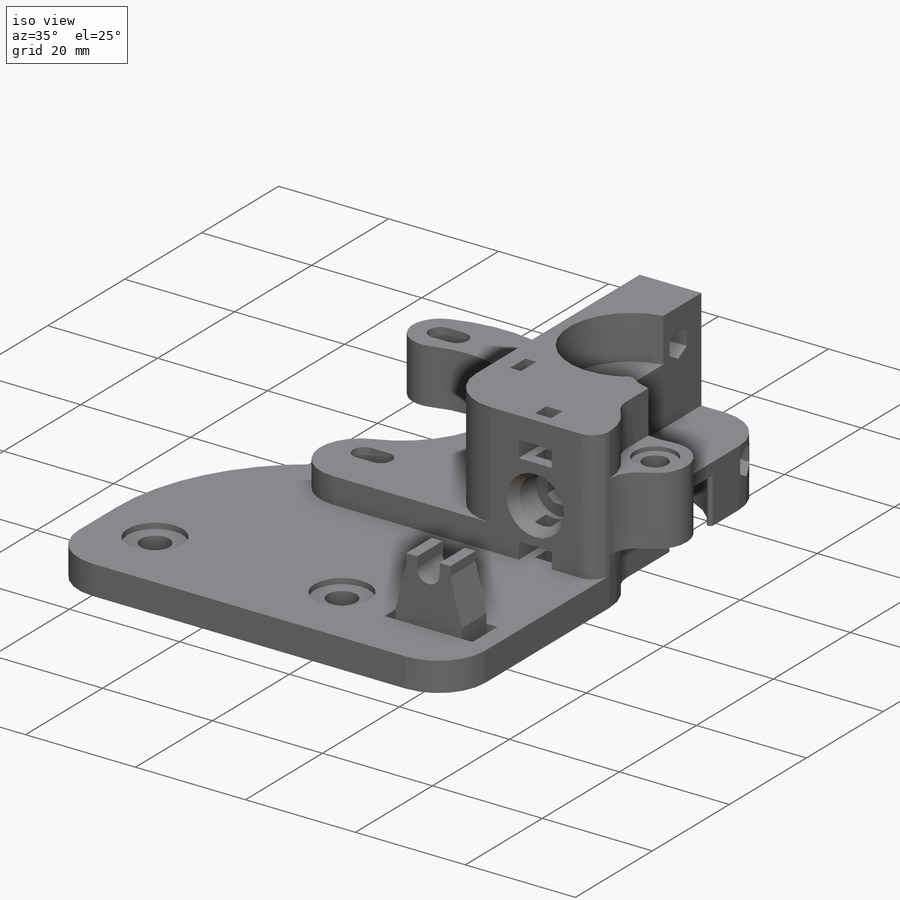
[diagram: iso view]
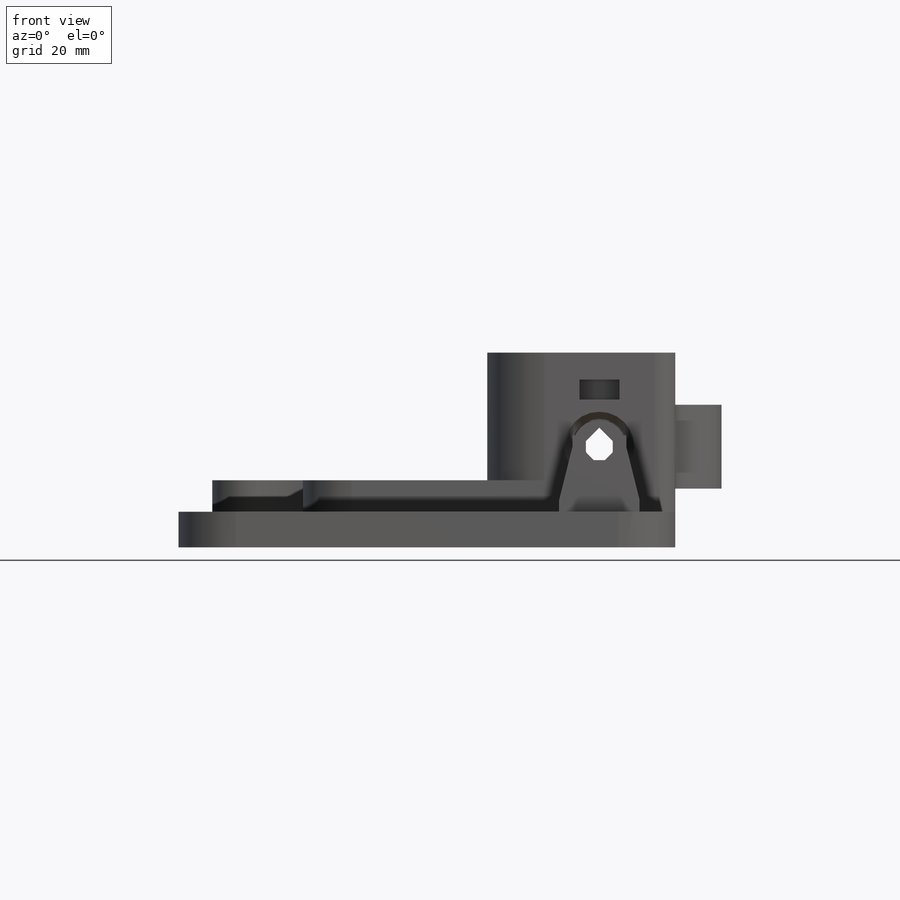
[diagram: front view]
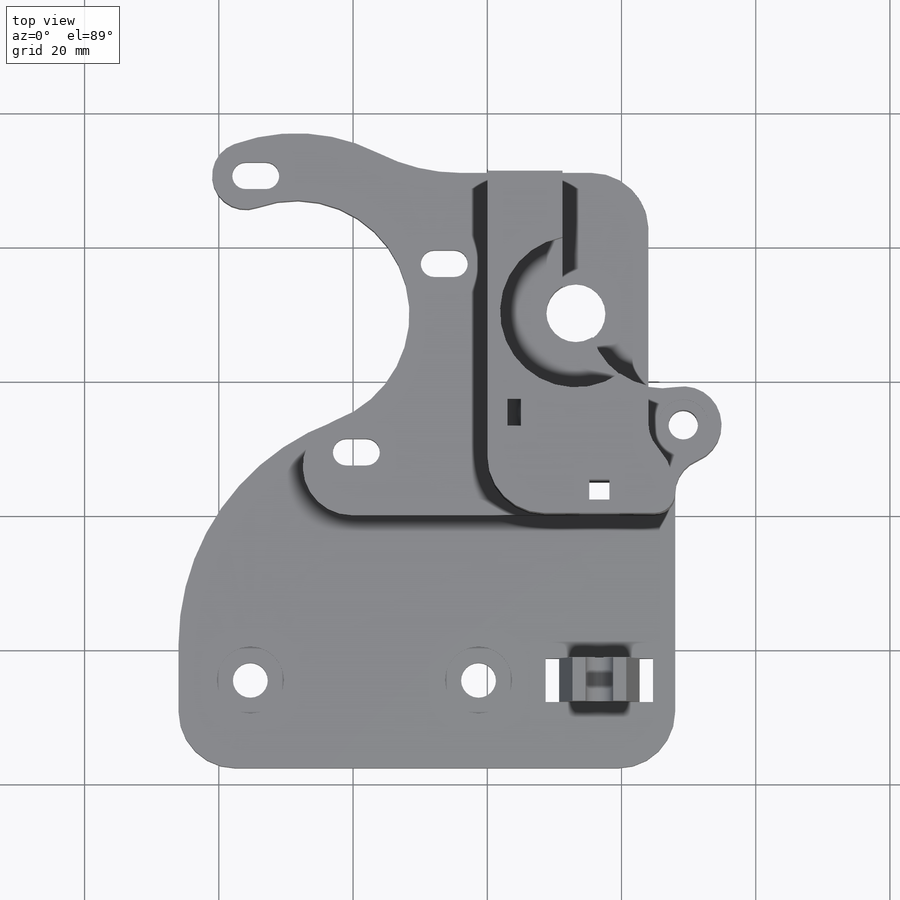
[diagram: top view]
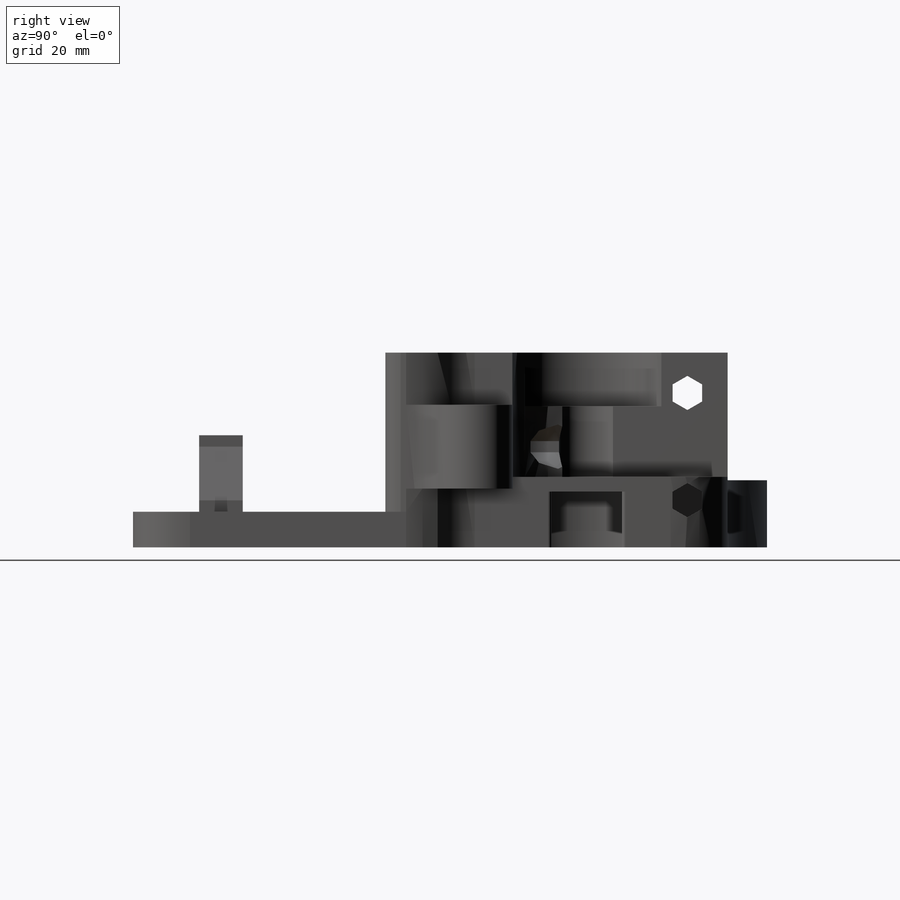
[diagram: right view]
SOLIDWORKS PART (.sldprt)
format: sldprt  version: not decoded by parser v0  size: 1,035,776 bytes
history: native  units: mm
features: sketch x31, cut_extrude x20, extrude x6, plane x6, fillet x4, material x1, cut_revolve x1, chamfer x1 (+11 scaffold rows collapsed)
feature tree (81):
  scaffold x11  (default folders/planes/origin — collapsed)
  material  "Material <not specified>"
  sketch  "Sketch2"  dims[c1.D1=30.99mm c1.D2=51.0mm c1.D3=28.0mm c1.D4=13.2mm c1.D5=30.0mm c1.D6=13.3mm c1.D7=29.2mm c1.D8=11.2mm c1.D9=24.0mm c1.D10=3.0mm c1.D11=37.6mm c1.D12=70.0mm c1.D13=12.88mm c1.D14=~28.186623mm c2.D13=30.99mm c3.D13=25.0deg c3.D14=40.2mm c3.D15=13.1mm c3.D16=31.9mm c3.D17=24.0mm c3.D10=46.0mm]
  sketch  "Sketch3"  dims[D1=3.0mm D2=4.0mm]
  sketch  "Sketch5"  dims[c1.D1=~4.851466mm c1.D4=~5.44255mm c2.D1=6.0mm c2.D7=30.0mm c2.D8=~17.971884mm c3.D7=9.0mm c3.D8=9.0mm c3.D2=3.0mm c3.D3=23.0mm c3.D1=3.0mm c3.D4=~3.366782mm c4.D1=3.0mm c4.D4=~3.527613mm c5.D4=45.0deg c6.D4=4.5mm c7.D4=45.0deg c7.D5=~3.512231mm c8.D5=45.0deg c8.D6=~10.900762mm c9.D6=45.0deg c9.D8=3.0mm c9.D7=~12.660559mm c10.D7=45.0deg c10.D8=4.5mm c11.D8=45.0deg c11.D9=~2.995741mm c12.D8=~3.731738mm]
  sketch  "Sketch6"  dims[c1.D1=5.0mm c1.D2=23.0mm c1.D3=~24.533157mm c2.D1=~11.515062mm c2.D2=~17.820346mm c2.D3=~0.140481mm]
  extrude  "Boss-Extrude1"  Depth=5.3mm
  sketch  "Sketch7"  dims[D2=~9.485199mm D1=0.0mm]
  extrude  "Boss-Extrude2"  Depth=10mm
  sketch  "Sketch8"  dims[D1=24.0mm]
  extrude  "Boss-Extrude3"  Depth=29mm
  fillet  "Fillet1"  Radius=8.5mm
  cut_extrude  "Cut-Extrude1"  [1 undecoded]
  sketch  "Sketch9"  dims[D1=22.6mm]
  cut_extrude  "Cut-Extrude2"  Depth=8.3mm
  sketch  "Sketch10"  dims[D1=22.6mm]
  cut_extrude  "Cut-Extrude3"  Depth=8mm
  sketch  "Sketch11"  dims[D1=8.8mm]
  cut_extrude  "Cut-Extrude4"  [1 undecoded]
  sketch  "Sketch12"  dims[c1.D4=4.4mm c1.D1=6.0mm c1.D2=16.0mm c1.D3=7.0mm c2.D4=4.4mm c2.D2=16.0mm c2.D1=6.0mm]
  cut_extrude  "Cut-Extrude5"  Depth=27mm
  sketch  "Sketch13"  dims[D1=~13.221747mm D2=13.0mm D3=0.2mm D4=~3.940359mm]
  cut_extrude  "Cut-Extrude6"  Depth=18.5mm
  sketch  "Sketch14"  dims[c1.D1=7.5mm c1.D2=7.75mm c1.D4=~4.246895mm c2.D4=60.0deg c2.D2=0.5mm c2.D3=2.0]
  cut_extrude  "Cut-Extrude7"  Depth=3.5mm
  sketch  "Sketch16"  dims[D3=4.0mm D1=15.0mm D2=16.7mm]
  cut_extrude  "Cut-Extrude9"  [1 undecoded]
  plane  "Plane2"
  plane  "Plane3"
  sketch  "Sketch18"
  sketch  "Sketch19"  dims[D2=7.0mm D1=0.0mm]
  plane  "Plane4"
  sketch  "Sketch20"  dims[c1.D1=1.7mm c1.D2=12.0mm c1.D3=2.0mm c1.D4=8.0mm c1.D5=4.1mm c1.D6=1.7mm c2.D4=8.0mm c2.D7=0.25mm]
  extrude  "Boss-Extrude4"  Depth=6.5mm
  sketch  "Sketch21"  dims[c1.D1=~4.868762mm c1.D2=~1.945386mm c2.D1=~4.868762mm c2.D2=~2.311574mm c3.D1=2.0mm c3.D2=5.3mm]
  cut_extrude  "Cut-Extrude10"  [1 undecoded]
  plane  "Plane5"  Offset=15mm
  sketch  "Sketch22"  dims[D1=~3.24992mm D2=2.0mm D3=3.0mm D4=1.5mm D5=3.0mm]
  cut_extrude  "Cut-Extrude11"  Depth=4mm
  sketch  "Sketch15"  dims[D1=5.2mm D2=10.0mm D3=34.0mm]
  cut_extrude  "Cut-Extrude8"  [1 undecoded]
  plane  "Plane6"
  sketch  "Sketch23"  dims[c1.D1=~10.540461mm c2.D1=100.0deg c2.D2=4.2mm c2.D3=6.0mm c2.D4=0.2mm c2.D5=3.0mm c3.D1=4.0mm]
  cut_revolve  "Cut-Revolve1"  Angle=360deg
  plane  "Plane7"
  sketch  "Sketch24"  dims[c1.D1=5.7mm c1.D2=51.0mm c2.D2=30.0deg c3.D2=3.1mm]
  extrude  "Boss-Extrude5"  Depth=12.5mm
  sketch  "Sketch25"  dims[D1=4.0mm]
  extrude  "Boss-Extrude6"  [1 undecoded]
  fillet  "Fillet2"  Radius=3.1mm
  fillet  "Fillet3"  Radius=8.5mm
  fillet  "Fillet4"  Radius=0.5mm
  sketch  "Sketch26"  dims[D1=10.0mm]
  cut_extrude  "Cut-Extrude12"  Depth=1mm
  sketch  "Sketch27"  dims[D1=4.4mm]
  cut_extrude  "Cut-Extrude13"  [1 undecoded]
  sketch  "Sketch28"  dims[D1=7.5mm]
  cut_extrude  "Cut-Extrude14"  Depth=0.75mm
  cut_extrude  "Cut-Extrude15"  [1 undecoded]
  sketch  "Sketch28<2>"  dims[D1=0.75mm]
  sketch  "Sketch29"  dims[D1=~3.091724mm D2=3.5mm]
  cut_extrude  "Cut-Extrude16"  [1 undecoded]
  sketch  "Sketch30"  dims[c1.D1=~2.242436mm c1.D2=~7.883423mm c2.D1=~3.000226mm c2.D2=~6.07968mm c3.D1=3.0mm c3.D2=6.0mm c3.D3=4.0mm]
  cut_extrude  "Cut-Extrude17"  Depth=7.5mm
  sketch  "Sketch31"  dims[c1.D1=~2.22538mm c2.D1=35.0deg c2.D2=~2.105908mm]
  cut_extrude  "Cut-Extrude18"  [1 undecoded]
  chamfer  "Chamfer1"  Distance=1mm Angle=60deg
  sketch  "Sketch32"  dims[D1=~1.656854mm]
  cut_extrude  "Cut-Extrude19"  [1 undecoded]
  sketch  "Sketch33"  dims[D1=6.5mm]
  cut_extrude  "Cut-Extrude20"  Depth=3mm
decode coverage: 51 of 63 modeling features carry decoded parameters
note: ~ marks probable driven/reference dimensions
note: 11 parameter values undecoded
summary: no parameter record found for 11 features
note: suppression state not decoded; provenance and decode notes live in map.json
